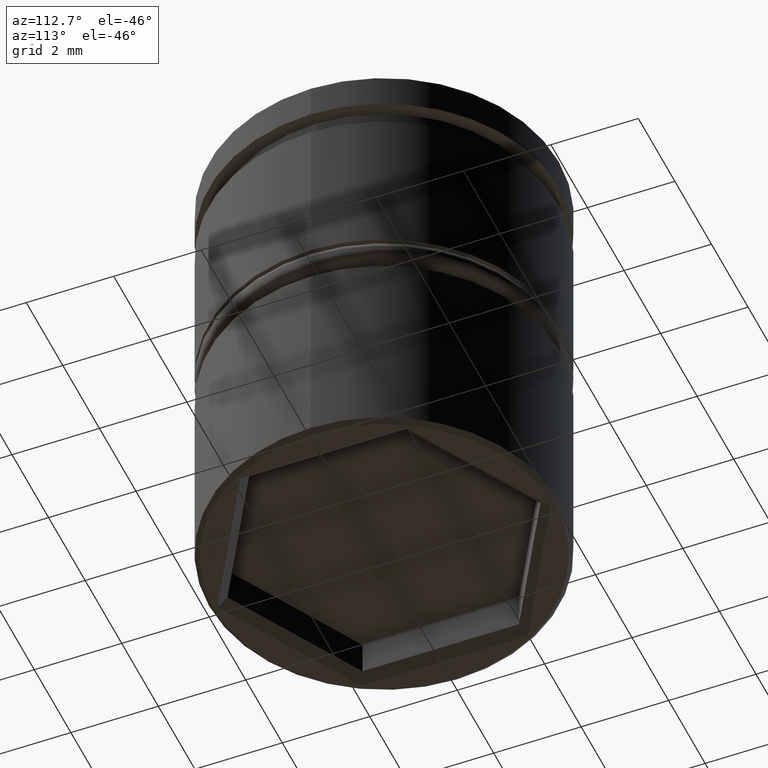
[diagram: clean part render]
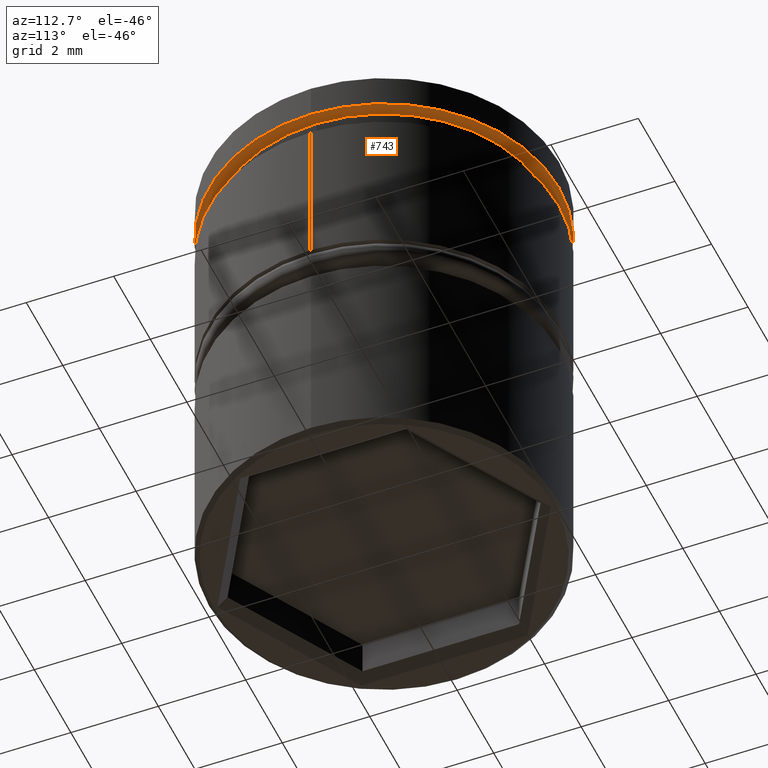
[diagram: same view with one face highlighted and labeled with its STEP entity id]
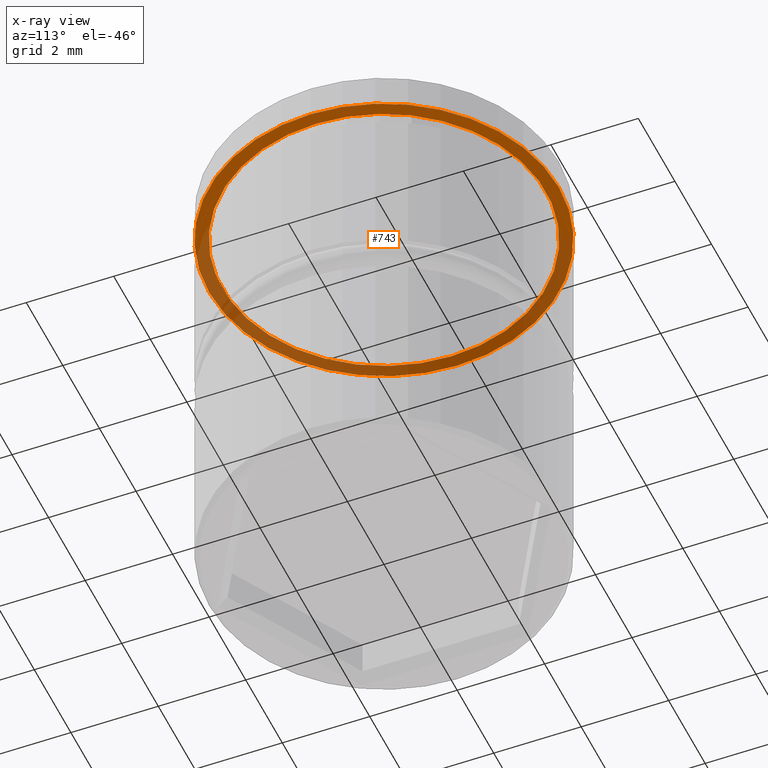
[diagram: x-ray of the same camera — body ghosted, the highlighted face saturated]
A machine part, auxiliary view. The second image highlights one B-rep face of the part: STEP entity #743.
The next image is the same camera in x-ray: the body ghosted, the highlighted face saturated — about 50% of this face is hidden behind the body in this view.
In plain terms, the highlighted planar face has unit normal (0, 0, -1).
Its self-contained STEP definition (entity closure, byte-faithful):
#55 = ORIENTED_EDGE ( 'NONE', *, *, #166, .T. ) ;
#100 = CARTESIAN_POINT ( 'NONE',  ( 0.000000000000000000, 0.000000000000000000, -0.8749999999999998890 ) ) ;
#106 = CARTESIAN_POINT ( 'NONE',  ( 0.000000000000000000, 0.000000000000000000, -0.8749999999999998890 ) ) ;
#125 = CARTESIAN_POINT ( 'NONE',  ( -4.000000000000000000, 4.898587196589412829E-16, -0.8749999999999998890 ) ) ;
#140 = CIRCLE ( 'NONE', #521, 4.000000000000000000 ) ;
#149 = FACE_OUTER_BOUND ( 'NONE', #860, .T. ) ;
#162 = EDGE_LOOP ( 'NONE', ( #912, #55 ) ) ;
#166 = EDGE_CURVE ( 'NONE', #656, #831, #1072, .T. ) ;
#190 = DIRECTION ( 'NONE',  ( -0.000000000000000000, -0.000000000000000000, 1.000000000000000000 ) ) ;
#195 = DIRECTION ( 'NONE',  ( 1.000000000000000000, 0.000000000000000000, 0.000000000000000000 ) ) ;
#201 = ORIENTED_EDGE ( 'NONE', *, *, #1119, .F. ) ;
#208 = CARTESIAN_POINT ( 'NONE',  ( -3.700000000000000178, 4.531193156845206201E-16, -0.8749999999999998890 ) ) ;
#212 = DIRECTION ( 'NONE',  ( 1.000000000000000000, 0.000000000000000000, 0.000000000000000000 ) ) ;
#232 = CARTESIAN_POINT ( 'NONE',  ( 0.000000000000000000, 4.000000000000000000, -0.8749999999999998890 ) ) ;
#246 = FACE_BOUND ( 'NONE', #162, .T. ) ;
#261 = DIRECTION ( 'NONE',  ( -0.000000000000000000, -0.000000000000000000, 1.000000000000000000 ) ) ;
#313 = DIRECTION ( 'NONE',  ( 0.000000000000000000, 0.000000000000000000, -1.000000000000000000 ) ) ;
#420 = CARTESIAN_POINT ( 'NONE',  ( 3.700000000000000178, 0.000000000000000000, -0.8749999999999998890 ) ) ;
#422 = CIRCLE ( 'NONE', #900, 4.000000000000000000 ) ;
#462 = DIRECTION ( 'NONE',  ( 1.000000000000000000, 0.000000000000000000, 0.000000000000000000 ) ) ;
#468 = EDGE_CURVE ( 'NONE', #831, #656, #1037, .T. ) ;
#481 = CARTESIAN_POINT ( 'NONE',  ( 0.000000000000000000, 0.000000000000000000, -0.8749999999999998890 ) ) ;
#500 = PLANE ( 'NONE',  #674 ) ;
#521 = AXIS2_PLACEMENT_3D ( 'NONE', #481, #1023, #557 ) ;
#557 = DIRECTION ( 'NONE',  ( 1.000000000000000000, 0.000000000000000000, 0.000000000000000000 ) ) ;
#572 = DIRECTION ( 'NONE',  ( -0.000000000000000000, -0.000000000000000000, 1.000000000000000000 ) ) ;
#636 = EDGE_CURVE ( 'NONE', #1123, #1131, #140, .T. ) ;
#656 = VERTEX_POINT ( 'NONE', #208 ) ;
#674 = AXIS2_PLACEMENT_3D ( 'NONE', #232, #313, #788 ) ;
#727 = AXIS2_PLACEMENT_3D ( 'NONE', #838, #190, #195 ) ;
#734 = ORIENTED_EDGE ( 'NONE', *, *, #636, .F. ) ;
#743 = ADVANCED_FACE ( 'NONE', ( #246, #149 ), #500, .T. ) ;
#788 = DIRECTION ( 'NONE',  ( -1.000000000000000000, 0.000000000000000000, -0.000000000000000000 ) ) ;
#831 = VERTEX_POINT ( 'NONE', #420 ) ;
#838 = CARTESIAN_POINT ( 'NONE',  ( 0.000000000000000000, 0.000000000000000000, -0.8749999999999998890 ) ) ;
#860 = EDGE_LOOP ( 'NONE', ( #201, #734 ) ) ;
#900 = AXIS2_PLACEMENT_3D ( 'NONE', #106, #572, #212 ) ;
#912 = ORIENTED_EDGE ( 'NONE', *, *, #468, .T. ) ;
#982 = AXIS2_PLACEMENT_3D ( 'NONE', #100, #261, #462 ) ;
#1023 = DIRECTION ( 'NONE',  ( -0.000000000000000000, -0.000000000000000000, 1.000000000000000000 ) ) ;
#1037 = CIRCLE ( 'NONE', #982, 3.700000000000000178 ) ;
#1050 = CARTESIAN_POINT ( 'NONE',  ( 4.000000000000000000, 0.000000000000000000, -0.8749999999999998890 ) ) ;
#1072 = CIRCLE ( 'NONE', #727, 3.700000000000000178 ) ;
#1119 = EDGE_CURVE ( 'NONE', #1131, #1123, #422, .T. ) ;
#1123 = VERTEX_POINT ( 'NONE', #125 ) ;
#1131 = VERTEX_POINT ( 'NONE', #1050 ) ;